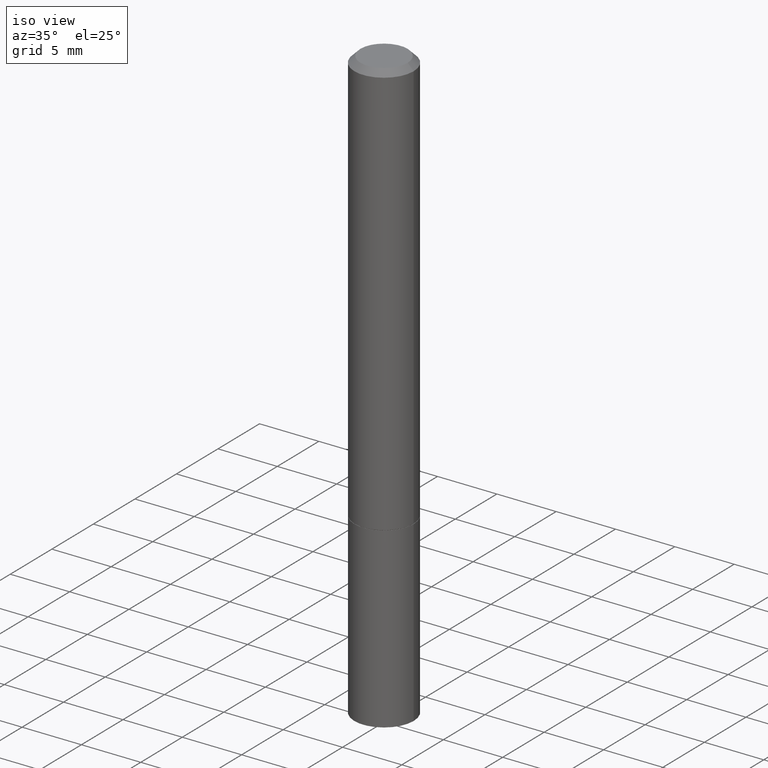
[diagram: clean part render]
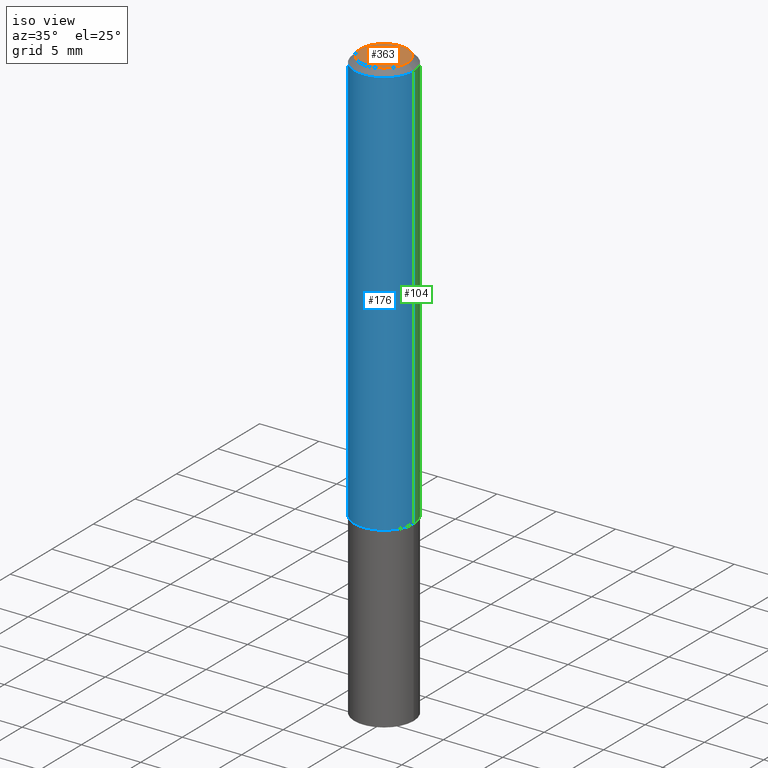
[diagram: same view with three faces highlighted in distinct colors, each labeled with its STEP entity id]
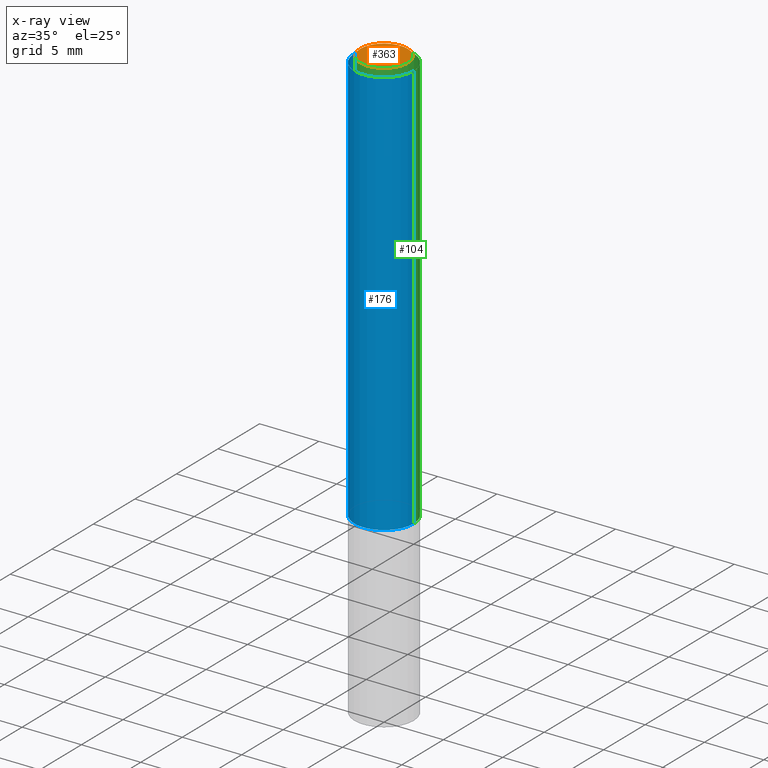
[diagram: x-ray of the same camera — body ghosted, the three highlighted faces saturated]
A machine part, iso view with three faces highlighted in distinct colors.
The next image is the same camera in x-ray (body ghosted, the three faces saturated) — at least one of them is partly hidden behind the body in this view.
Their STEP definitions:

[orange] entity #363 — the highlighted planar face has unit normal (0, -0, -1).
#17 = CARTESIAN_POINT ( 'NONE',  ( 5.478134220644863581E-16, 0.07844999999999982543, -2.739067110322441651E-16 ) ) ;
#20 = ORIENTED_EDGE ( 'NONE', *, *, #42, .T. ) ;
#27 = DIRECTION ( 'NONE',  ( -2.445468806185136597E-29, 3.491481338843145583E-15, 1.000000000000000000 ) ) ;
#36 = AXIS2_PLACEMENT_3D ( 'NONE', #277, #27, #250 ) ;
#37 = DIRECTION ( 'NONE',  ( 1.000000000000000000, -6.982962677686265922E-15, 4.876176775795936914E-29 ) ) ;
#42 = EDGE_CURVE ( 'NONE', #302, #209, #284, .T. ) ;
#43 = PLANE ( 'NONE',  #96 ) ;
#55 = ORIENTED_EDGE ( 'NONE', *, *, #191, .T. ) ;
#73 = DIRECTION ( 'NONE',  ( 2.438088387897960049E-29, -3.491481338843145188E-15, -1.000000000000000000 ) ) ;
#87 = DIRECTION ( 'NONE',  ( -2.445468806185136597E-29, 3.491481338843145583E-15, 1.000000000000000000 ) ) ;
#96 = AXIS2_PLACEMENT_3D ( 'NONE', #17, #73, #294 ) ;
#99 = CARTESIAN_POINT ( 'NONE',  ( -0.07844999999999982543, 5.827282354529176128E-16, -3.953055038153092165E-30 ) ) ;
#148 = CARTESIAN_POINT ( 'NONE',  ( 0.07844999999999982543, -6.417258612913221441E-16, 4.159044147803931210E-30 ) ) ;
#149 = CIRCLE ( 'NONE', #201, 0.07844999999999982543 ) ;
#191 = EDGE_CURVE ( 'NONE', #209, #302, #149, .T. ) ;
#201 = AXIS2_PLACEMENT_3D ( 'NONE', #345, #87, #37 ) ;
#209 = VERTEX_POINT ( 'NONE', #148 ) ;
#250 = DIRECTION ( 'NONE',  ( 1.000000000000000000, -6.982962677686265922E-15, 4.876176775795936914E-29 ) ) ;
#277 = CARTESIAN_POINT ( 'NONE',  ( 0.000000000000000000, 0.000000000000000000, 0.000000000000000000 ) ) ;
#284 = CIRCLE ( 'NONE', #36, 0.07844999999999982543 ) ;
#294 = DIRECTION ( 'NONE',  ( -1.000000000000000000, 6.982962677686265922E-15, -4.876176775795935793E-29 ) ) ;
#298 = FACE_OUTER_BOUND ( 'NONE', #340, .T. ) ;
#302 = VERTEX_POINT ( 'NONE', #99 ) ;
#340 = EDGE_LOOP ( 'NONE', ( #20, #55 ) ) ;
#345 = CARTESIAN_POINT ( 'NONE',  ( 0.000000000000000000, 0.000000000000000000, 0.000000000000000000 ) ) ;
#363 = ADVANCED_FACE ( 'NONE', ( #298 ), #43, .F. ) ;

[blue] entity #176 — the highlighted cylindrical surface (edge-blend (fillet) strip) has radius 2.5006 mm, axis along (-0, 0, 1).
#21 = DIRECTION ( 'NONE',  ( 1.000000000000000000, -6.982962677686266711E-15, 0.000000000000000000 ) ) ;
#29 = ORIENTED_EDGE ( 'NONE', *, *, #258, .F. ) ;
#31 = VERTEX_POINT ( 'NONE', #133 ) ;
#35 = CARTESIAN_POINT ( 'NONE',  ( -0.09844999999999980156, 6.176430488413486702E-16, -0.02000000000000003164 ) ) ;
#48 = VECTOR ( 'NONE', #103, 39.37007874015748143 ) ;
#63 = DIRECTION ( 'NONE',  ( -2.445468806185136597E-29, 3.491481338843145583E-15, 1.000000000000000000 ) ) ;
#91 = EDGE_CURVE ( 'NONE', #330, #322, #314, .T. ) ;
#94 = ORIENTED_EDGE ( 'NONE', *, *, #154, .T. ) ;
#103 = DIRECTION ( 'NONE',  ( -2.445468806185136877E-29, 3.491481338843145188E-15, 1.000000000000000000 ) ) ;
#122 = VECTOR ( 'NONE', #350, 39.37007874015748143 ) ;
#133 = CARTESIAN_POINT ( 'NONE',  ( -0.09844999999999998197, -1.739095817759174494E-15, -1.376900000000000013 ) ) ;
#135 = VERTEX_POINT ( 'NONE', #35 ) ;
#154 = EDGE_CURVE ( 'NONE', #31, #330, #215, .T. ) ;
#170 = DIRECTION ( 'NONE',  ( 1.000000000000000000, -6.982962677686266711E-15, 4.876176775795936353E-29 ) ) ;
#176 = ADVANCED_FACE ( 'NONE', ( #316 ), #230, .T. ) ;
#179 = AXIS2_PLACEMENT_3D ( 'NONE', #276, #63, #21 ) ;
#193 = AXIS2_PLACEMENT_3D ( 'NONE', #259, #200, #170 ) ;
#200 = DIRECTION ( 'NONE',  ( -2.445468806185136597E-29, 3.491481338843145583E-15, 1.000000000000000000 ) ) ;
#205 = DIRECTION ( 'NONE',  ( -2.445468806185136597E-29, 3.491481338843145583E-15, 1.000000000000000000 ) ) ;
#214 = CARTESIAN_POINT ( 'NONE',  ( 0.09844999999999980156, -7.452456546574689274E-16, -0.02000000000000003164 ) ) ;
#215 = CIRCLE ( 'NONE', #295, 0.09844999999999998197 ) ;
#230 = CYLINDRICAL_SURFACE ( 'NONE', #193, 0.09844999999999988483 ) ;
#234 = CARTESIAN_POINT ( 'NONE',  ( 3.367165999236314681E-29, -4.807420655453126643E-15, -1.376900000000000013 ) ) ;
#238 = EDGE_LOOP ( 'NONE', ( #245, #94, #333, #29 ) ) ;
#245 = ORIENTED_EDGE ( 'NONE', *, *, #319, .F. ) ;
#248 = CARTESIAN_POINT ( 'NONE',  ( -0.09844999999999988483, 6.995293233558178146E-16, -4.842691596355949137E-30 ) ) ;
#258 = EDGE_CURVE ( 'NONE', #135, #322, #310, .T. ) ;
#259 = CARTESIAN_POINT ( 'NONE',  ( 0.000000000000000000, 0.000000000000000000, 0.000000000000000000 ) ) ;
#266 = LINE ( 'NONE', #248, #48 ) ;
#276 = CARTESIAN_POINT ( 'NONE',  ( 4.890937612370280165E-31, -6.982962677686301470E-17, -0.02000000000000003164 ) ) ;
#295 = AXIS2_PLACEMENT_3D ( 'NONE', #234, #205, #317 ) ;
#310 = CIRCLE ( 'NONE', #179, 0.09844999999999980156 ) ;
#311 = CARTESIAN_POINT ( 'NONE',  ( 0.09844999999999988483, -6.874726756182121656E-16, 4.800596035771093609E-30 ) ) ;
#314 = LINE ( 'NONE', #311, #122 ) ;
#316 = FACE_OUTER_BOUND ( 'NONE', #238, .T. ) ;
#317 = DIRECTION ( 'NONE',  ( 1.000000000000000000, -6.982962677686266711E-15, 0.000000000000000000 ) ) ;
#319 = EDGE_CURVE ( 'NONE', #31, #135, #266, .T. ) ;
#322 = VERTEX_POINT ( 'NONE', #214 ) ;
#330 = VERTEX_POINT ( 'NONE', #362 ) ;
#333 = ORIENTED_EDGE ( 'NONE', *, *, #91, .T. ) ;
#350 = DIRECTION ( 'NONE',  ( -2.445468806185136877E-29, 3.491481338843145188E-15, 1.000000000000000000 ) ) ;
#362 = CARTESIAN_POINT ( 'NONE',  ( 0.09844999999999998197, -5.494893331071339992E-15, -1.376900000000000013 ) ) ;

[green] entity #104 — the highlighted cylindrical surface (edge-blend (fillet) strip) has radius 2.5006 mm, axis along (-0, 0, 1).
#5 = CARTESIAN_POINT ( 'NONE',  ( 3.367165999236314681E-29, -4.807420655453126643E-15, -1.376900000000000013 ) ) ;
#31 = VERTEX_POINT ( 'NONE', #133 ) ;
#35 = CARTESIAN_POINT ( 'NONE',  ( -0.09844999999999980156, 6.176430488413486702E-16, -0.02000000000000003164 ) ) ;
#39 = DIRECTION ( 'NONE',  ( 1.000000000000000000, -6.982962677686266711E-15, 0.000000000000000000 ) ) ;
#48 = VECTOR ( 'NONE', #103, 39.37007874015748143 ) ;
#61 = CYLINDRICAL_SURFACE ( 'NONE', #260, 0.09844999999999988483 ) ;
#62 = DIRECTION ( 'NONE',  ( 1.000000000000000000, -6.982962677686266711E-15, 0.000000000000000000 ) ) ;
#71 = AXIS2_PLACEMENT_3D ( 'NONE', #256, #291, #62 ) ;
#79 = EDGE_LOOP ( 'NONE', ( #251, #98, #282, #216 ) ) ;
#91 = EDGE_CURVE ( 'NONE', #330, #322, #314, .T. ) ;
#98 = ORIENTED_EDGE ( 'NONE', *, *, #319, .T. ) ;
#103 = DIRECTION ( 'NONE',  ( -2.445468806185136877E-29, 3.491481338843145188E-15, 1.000000000000000000 ) ) ;
#104 = ADVANCED_FACE ( 'NONE', ( #206 ), #61, .T. ) ;
#120 = CARTESIAN_POINT ( 'NONE',  ( 0.000000000000000000, 0.000000000000000000, 0.000000000000000000 ) ) ;
#122 = VECTOR ( 'NONE', #350, 39.37007874015748143 ) ;
#133 = CARTESIAN_POINT ( 'NONE',  ( -0.09844999999999998197, -1.739095817759174494E-15, -1.376900000000000013 ) ) ;
#135 = VERTEX_POINT ( 'NONE', #35 ) ;
#143 = DIRECTION ( 'NONE',  ( -2.445468806185136597E-29, 3.491481338843145583E-15, 1.000000000000000000 ) ) ;
#144 = EDGE_CURVE ( 'NONE', #330, #31, #186, .T. ) ;
#171 = EDGE_CURVE ( 'NONE', #322, #135, #175, .T. ) ;
#173 = DIRECTION ( 'NONE',  ( -2.445468806185136597E-29, 3.491481338843145583E-15, 1.000000000000000000 ) ) ;
#175 = CIRCLE ( 'NONE', #71, 0.09844999999999980156 ) ;
#186 = CIRCLE ( 'NONE', #344, 0.09844999999999998197 ) ;
#206 = FACE_OUTER_BOUND ( 'NONE', #79, .T. ) ;
#214 = CARTESIAN_POINT ( 'NONE',  ( 0.09844999999999980156, -7.452456546574689274E-16, -0.02000000000000003164 ) ) ;
#216 = ORIENTED_EDGE ( 'NONE', *, *, #91, .F. ) ;
#248 = CARTESIAN_POINT ( 'NONE',  ( -0.09844999999999988483, 6.995293233558178146E-16, -4.842691596355949137E-30 ) ) ;
#251 = ORIENTED_EDGE ( 'NONE', *, *, #144, .T. ) ;
#256 = CARTESIAN_POINT ( 'NONE',  ( 4.890937612370280165E-31, -6.982962677686301470E-17, -0.02000000000000003164 ) ) ;
#260 = AXIS2_PLACEMENT_3D ( 'NONE', #120, #173, #342 ) ;
#266 = LINE ( 'NONE', #248, #48 ) ;
#282 = ORIENTED_EDGE ( 'NONE', *, *, #171, .F. ) ;
#291 = DIRECTION ( 'NONE',  ( -2.445468806185136597E-29, 3.491481338843145583E-15, 1.000000000000000000 ) ) ;
#311 = CARTESIAN_POINT ( 'NONE',  ( 0.09844999999999988483, -6.874726756182121656E-16, 4.800596035771093609E-30 ) ) ;
#314 = LINE ( 'NONE', #311, #122 ) ;
#319 = EDGE_CURVE ( 'NONE', #31, #135, #266, .T. ) ;
#322 = VERTEX_POINT ( 'NONE', #214 ) ;
#330 = VERTEX_POINT ( 'NONE', #362 ) ;
#342 = DIRECTION ( 'NONE',  ( 1.000000000000000000, -6.982962677686266711E-15, 4.876176775795936353E-29 ) ) ;
#344 = AXIS2_PLACEMENT_3D ( 'NONE', #5, #143, #39 ) ;
#350 = DIRECTION ( 'NONE',  ( -2.445468806185136877E-29, 3.491481338843145188E-15, 1.000000000000000000 ) ) ;
#362 = CARTESIAN_POINT ( 'NONE',  ( 0.09844999999999998197, -5.494893331071339992E-15, -1.376900000000000013 ) ) ;